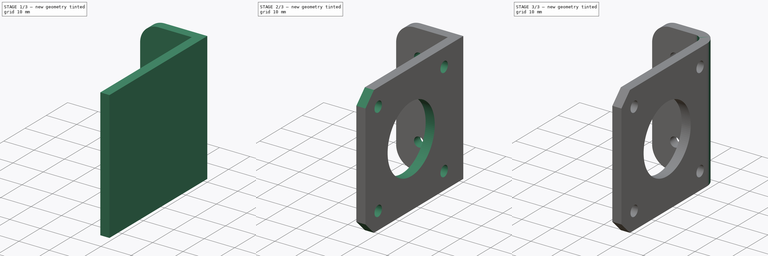
[diagram: build sequence overview — one tinted view per stage of 3, left to right]
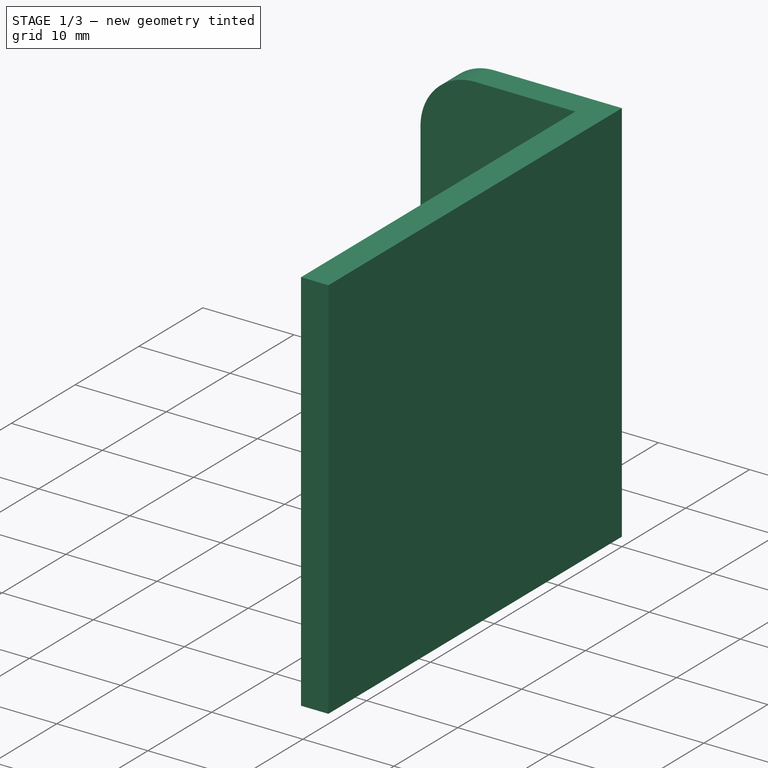
[diagram: stage 1 of 3 — iso view after this stage's code; geometry added in this stage tinted green]
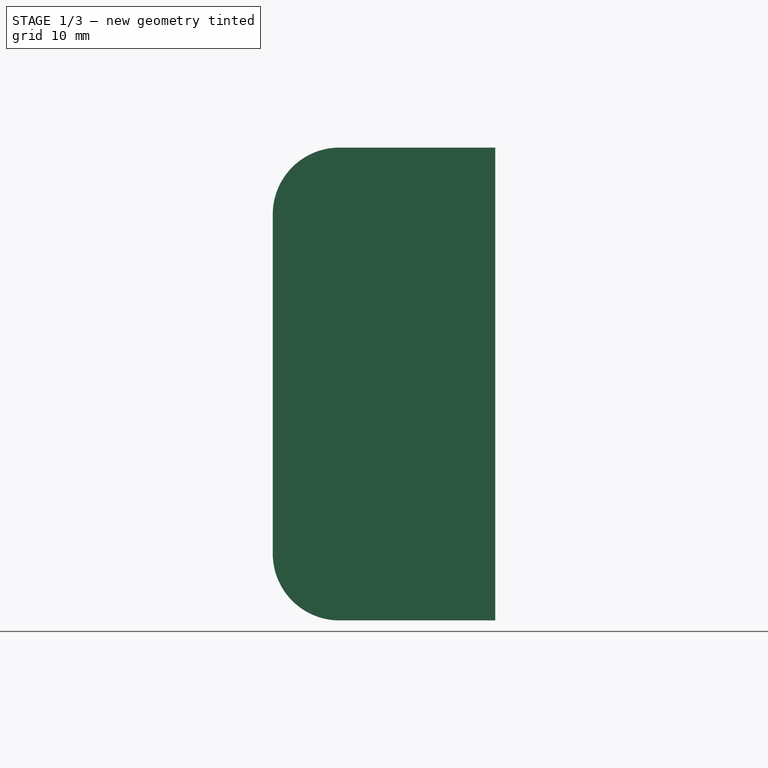
[diagram: stage 1 of 3 — front view after this stage's code; geometry added in this stage tinted green]
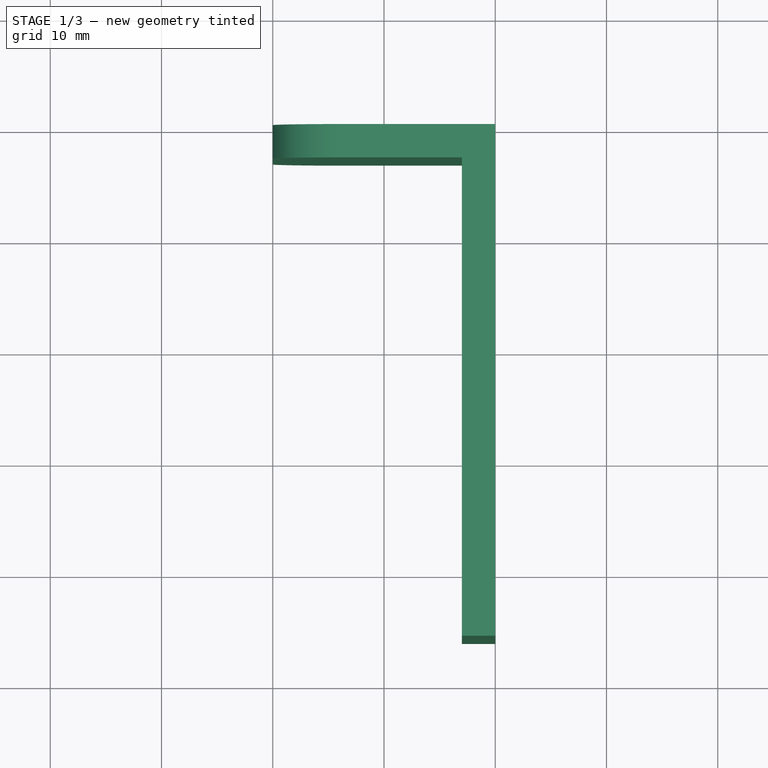
[diagram: stage 1 of 3 — top view after this stage's code; geometry added in this stage tinted green]
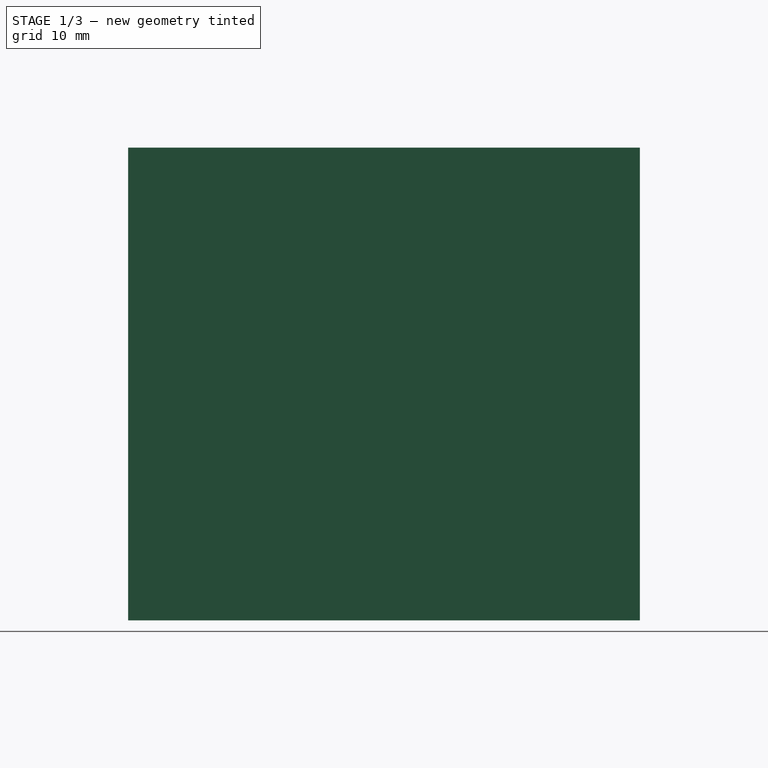
[diagram: stage 1 of 3 — right view after this stage's code; geometry added in this stage tinted green]
FCSTD DOCUMENT  (FreeCAD 0.14R3310 (Git))
Label: 64. SOPORTE MOTOR Y
License: CC-BY 3.0
LicenseURL: http://creativecommons.org/licenses/by/3.0/
objects: Sketcher::SketchObject×3, PartDesign::Fillet×3, PartDesign::Pocket×2, PartDesign::Pad×1, PartDesign::Chamfer×1
note: 13 computed .brp shape members not serialized (recipe doc carries the construction recipe); baked Part::Feature solids carry a one-line shape summary decoded from their .brp

FEATURE [Sketcher::SketchObject] Sketch
  sketch-geometry (6):
    g0: LineSegment StartX=-20 StartY=0 StartZ=0 EndX=0 EndY=0 EndZ=0
    g1: LineSegment StartX=0 StartY=0 StartZ=0 EndX=0 EndY=-46 EndZ=0
    g2: LineSegment StartX=0 StartY=-46 StartZ=0 EndX=-3 EndY=-46 EndZ=0
    g3: LineSegment StartX=-3 StartY=-46 StartZ=0 EndX=-3 EndY=-3 EndZ=0
    g4: LineSegment StartX=-20 StartY=0 StartZ=0 EndX=-20 EndY=-3 EndZ=0
    g5: LineSegment StartX=-20 StartY=-3 StartZ=0 EndX=-3 EndY=-3 EndZ=0
  constraints (17):
    c: Horizontal(g0)
    c: Coincident(g0,g1)
    c: Vertical(g1)
    c: Coincident(g1,g2)
    c: Horizontal(g2)
    c: Coincident(g2,g3)
    c: Vertical(g3)
    c: Coincident(g-1,g0)
    c: Distance(g2) = 3
    c: Coincident(g4,g0)
    c: Vertical(g4)
    c: Coincident(g5,g4)
    c: Coincident(g5,g3)
    c: Horizontal(g5)
    c: Distance(g4) = 3
    c: Distance(g1) = 46
    c: Distance(g0) = 20
FEATURE [PartDesign::Pad] Pad
  Length = 42.5
  Length2 = 100
  Sketch = -> Sketch
  Type = 0
FEATURE [PartDesign::Fillet] Fillet
  Base = -> Pad [Edge17,Edge18]
  Radius = 6
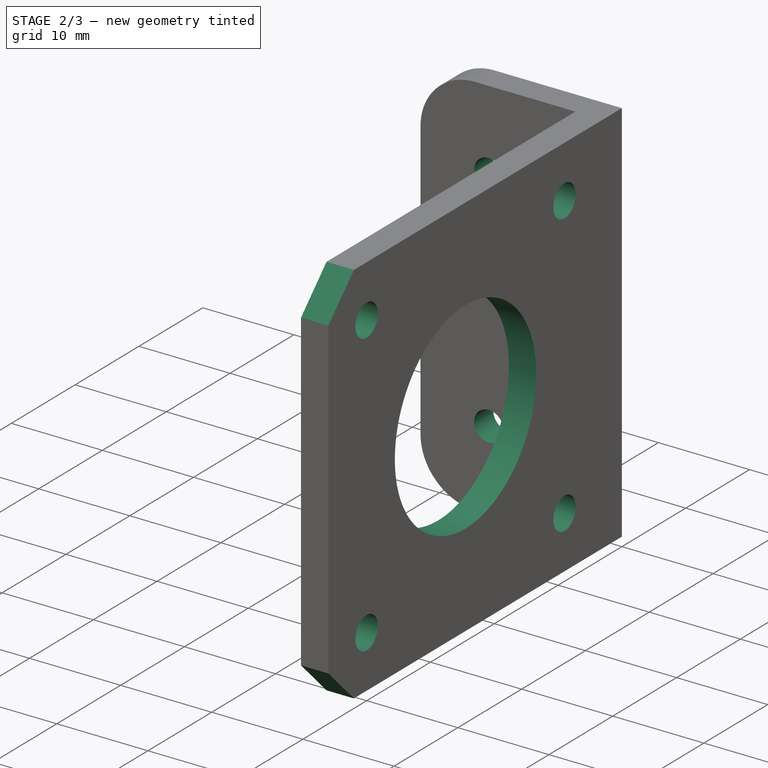
[diagram: stage 2 of 3 — iso view after this stage's code; geometry added in this stage tinted green]
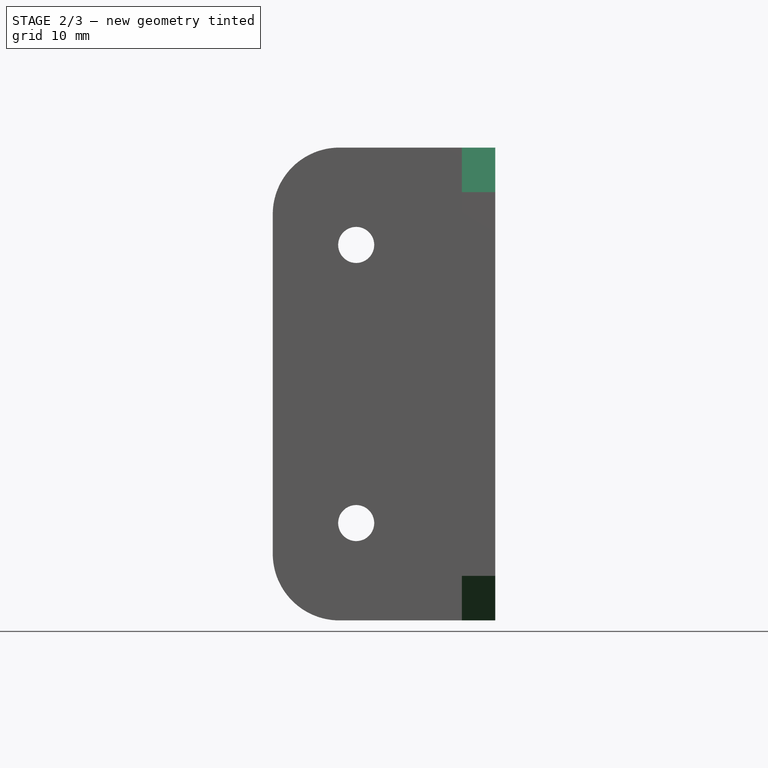
[diagram: stage 2 of 3 — front view after this stage's code; geometry added in this stage tinted green]
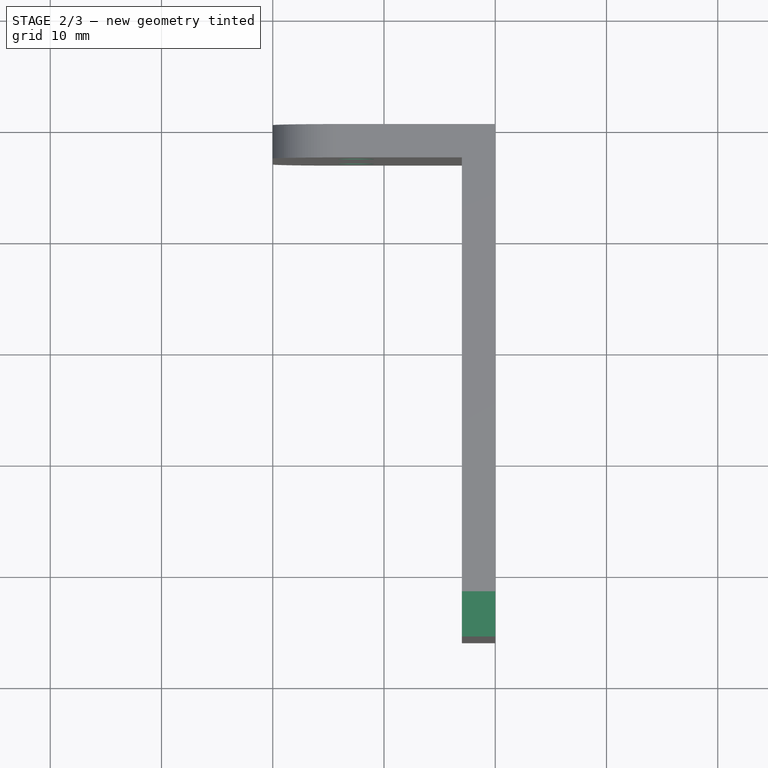
[diagram: stage 2 of 3 — top view after this stage's code; geometry added in this stage tinted green]
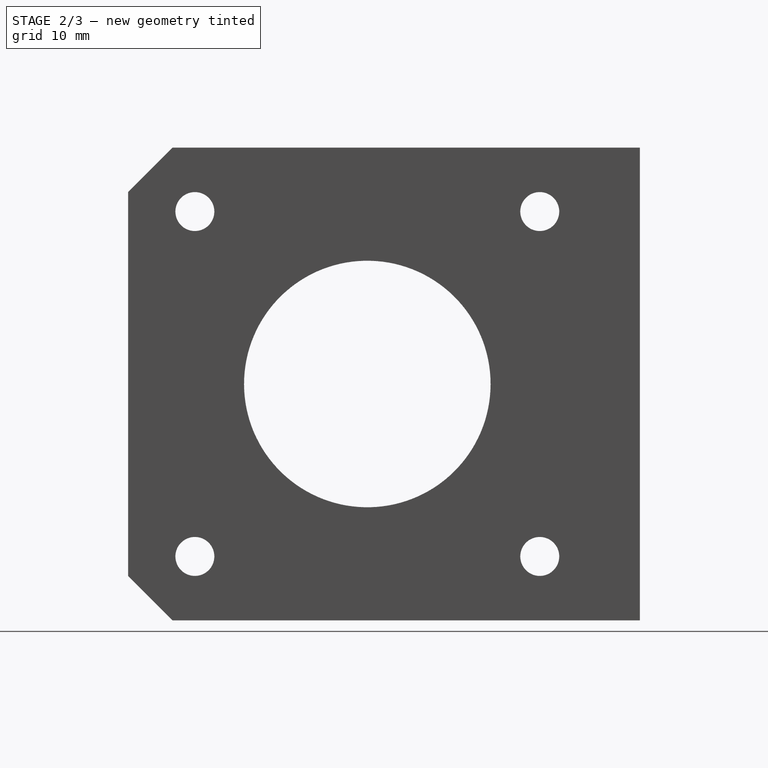
[diagram: stage 2 of 3 — right view after this stage's code; geometry added in this stage tinted green]
FEATURE [Sketcher::SketchObject] Sketch001
  ExternalGeometry = -> [Fillet]
  Placement = pos=(0,-3,0) rot=(1,0,0;1.5708rad)
  Support = -> Fillet [Face8]
  sketch-geometry (2):
    g0: Circle CenterX=-12.5 CenterY=33.75 CenterZ=0 NormalX=0 NormalY=0 NormalZ=1 Radius=1.62
    g1: Circle CenterX=-12.5 CenterY=8.75 CenterZ=0 NormalX=0 NormalY=0 NormalZ=1 Radius=1.62
  constraints (6):
    c: Distance(g0,g-3) = 7.5
    c: Distance(g1,g-3) = 7.5
    c: Equal(g0,g1)
    c: Distance(g0,g1) = 25
    c: Radius(g0) = 1.62
    c: DistanceY(g-1,g1) = 8.75
FEATURE [PartDesign::Pocket] Pocket
  Length = 5
  Sketch = -> Sketch001
  Type = 0
FEATURE [PartDesign::Chamfer] Chamfer
  Base = -> Pocket [Edge18,Edge22]
  Size = 4
FEATURE [Sketcher::SketchObject] Sketch002
  ExternalGeometry = -> [Chamfer]
  Placement = pos=(-3,0,0) rot=(0.57735,-0.57735,-0.57735;2.0944rad)
  Support = -> Chamfer [Face5]
  sketch-geometry (9):
    g0: Circle CenterX=24.5 CenterY=21.25 CenterZ=0 NormalX=0 NormalY=0 NormalZ=1 Radius=11.08
    g1: Circle CenterX=9 CenterY=36.75 CenterZ=0 NormalX=0 NormalY=0 NormalZ=1 Radius=1.75
    g2: Circle CenterX=40 CenterY=36.75 CenterZ=0 NormalX=0 NormalY=0 NormalZ=1 Radius=1.75
    g3: Circle CenterX=9 CenterY=5.75 CenterZ=0 NormalX=0 NormalY=0 NormalZ=1 Radius=1.75
    g4: Circle CenterX=40 CenterY=5.75 CenterZ=0 NormalX=0 NormalY=0 NormalZ=1 Radius=1.75
    g5: LineSegment [constr] StartX=9 StartY=36.75 StartZ=0 EndX=40 EndY=36.75 EndZ=0
    g6: LineSegment [constr] StartX=40 StartY=36.75 StartZ=0 EndX=40 EndY=5.75 EndZ=0
    g7: LineSegment [constr] StartX=40 StartY=5.75 StartZ=0 EndX=9 EndY=5.75 EndZ=0
    g8: LineSegment [constr] StartX=9 StartY=5.75 StartZ=0 EndX=9 EndY=36.75 EndZ=0
  constraints (23):
    c: Equal(g3,g1)
    c: Equal(g1,g2)
    c: Equal(g2,g4)
    c: Radius(g3) = 1.75
    c: Coincident(g5,g6)
    c: Coincident(g6,g7)
    c: Coincident(g7,g8)
    c: Coincident(g8,g5)
    c: Horizontal(g5)
    c: Horizontal(g7)
    c: Vertical(g6)
    c: Vertical(g8)
    c: Coincident(g5,g1)
    c: Coincident(g6,g4)
    c: Coincident(g2,g5)
    c: Coincident(g3,g7)
    c: Distance(g1,g-3) = 5.75
    c: Distance(g2,g-4) = 6
    c: Equal(g6,g5)
    c: Distance(g5) = 31
    c: Radius(g0) = 11.08
    c: Distance(g0,g8) = 15.5
    c: Distance(g0,g7) = 15.5
FEATURE [PartDesign::Pocket] Pocket001
  Length = 5
  Sketch = -> Sketch002
  Type = 0
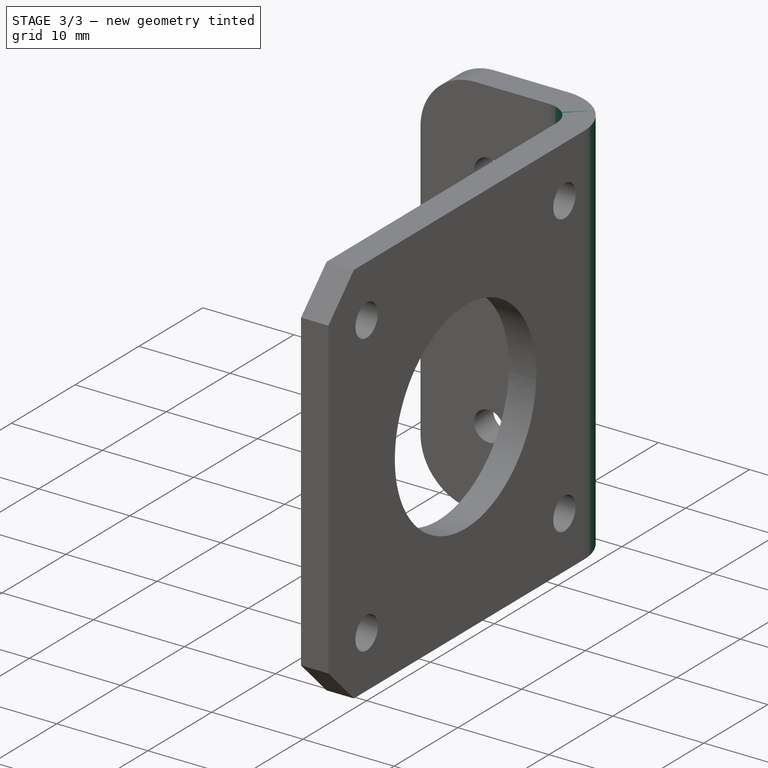
[diagram: stage 3 of 3 — iso view after this stage's code; geometry added in this stage tinted green]
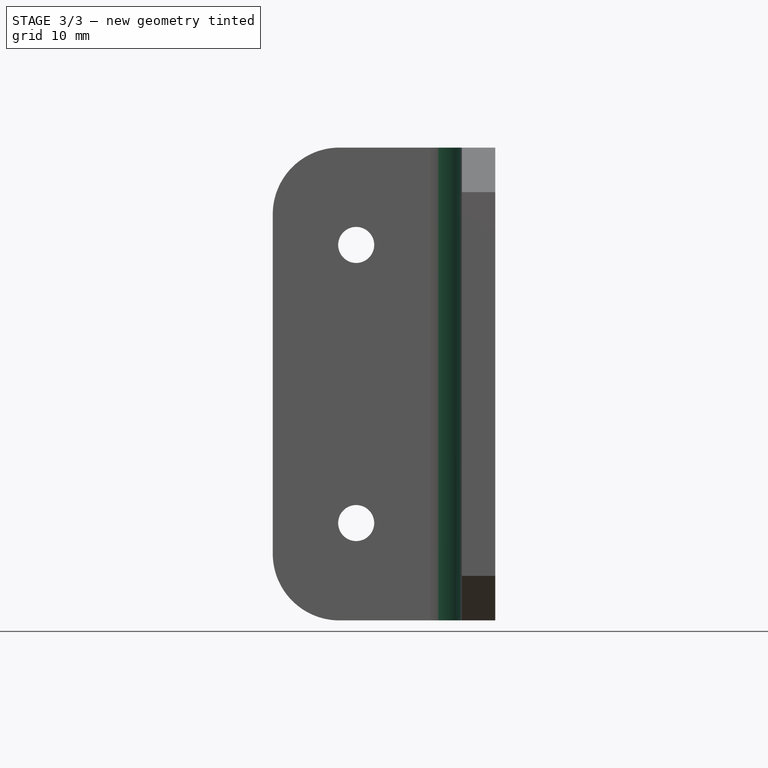
[diagram: stage 3 of 3 — front view after this stage's code; geometry added in this stage tinted green]
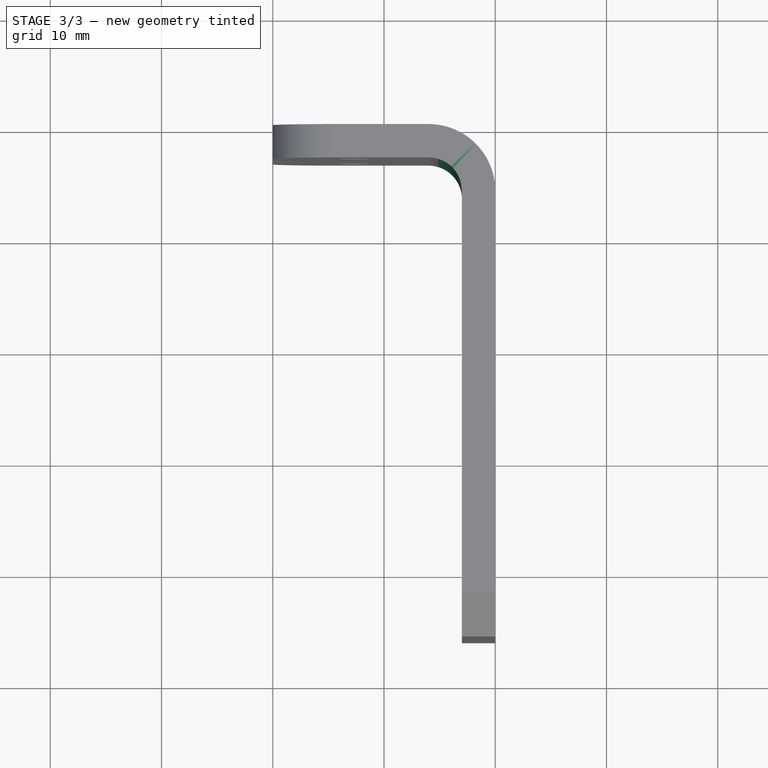
[diagram: stage 3 of 3 — top view after this stage's code; geometry added in this stage tinted green]
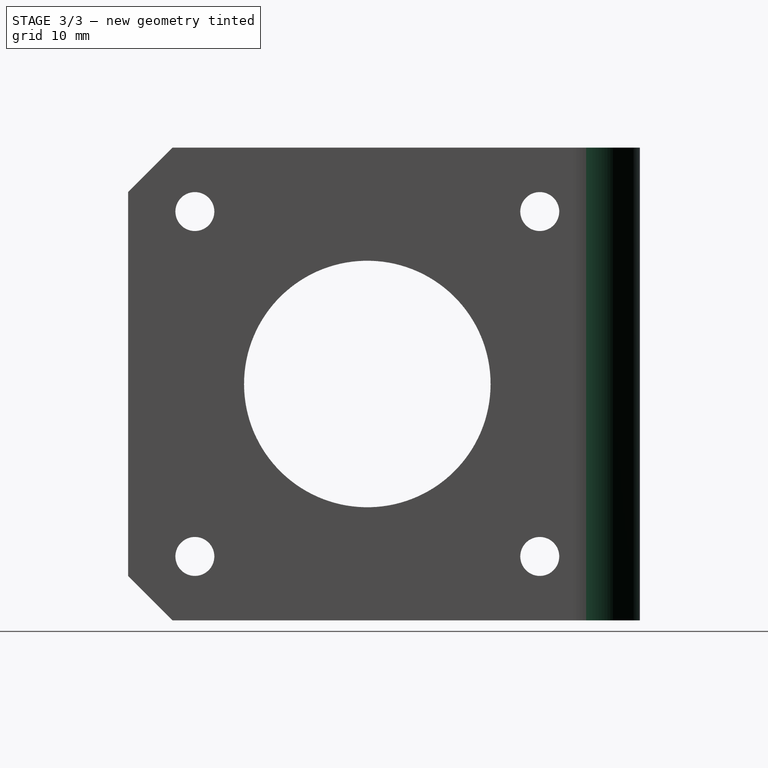
[diagram: stage 3 of 3 — right view after this stage's code; geometry added in this stage tinted green]
FEATURE [PartDesign::Fillet] Fillet001
  Base = -> Pocket001 [Edge28]
  Radius = 3
FEATURE [PartDesign::Fillet] Fillet002
  Base = -> Fillet001 [Edge31]
  Radius = 6
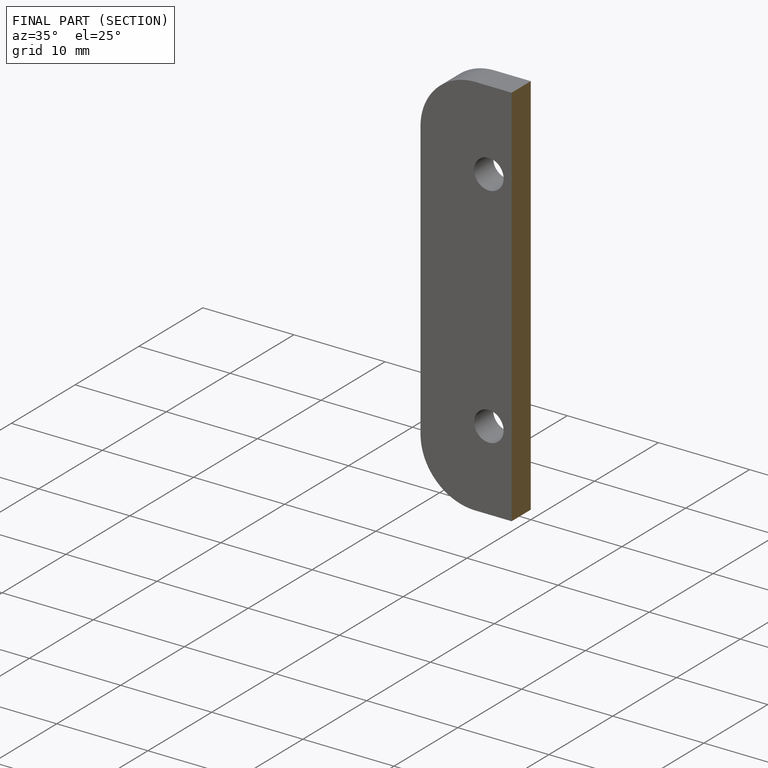
[diagram: finished part — half-section view (interior)]
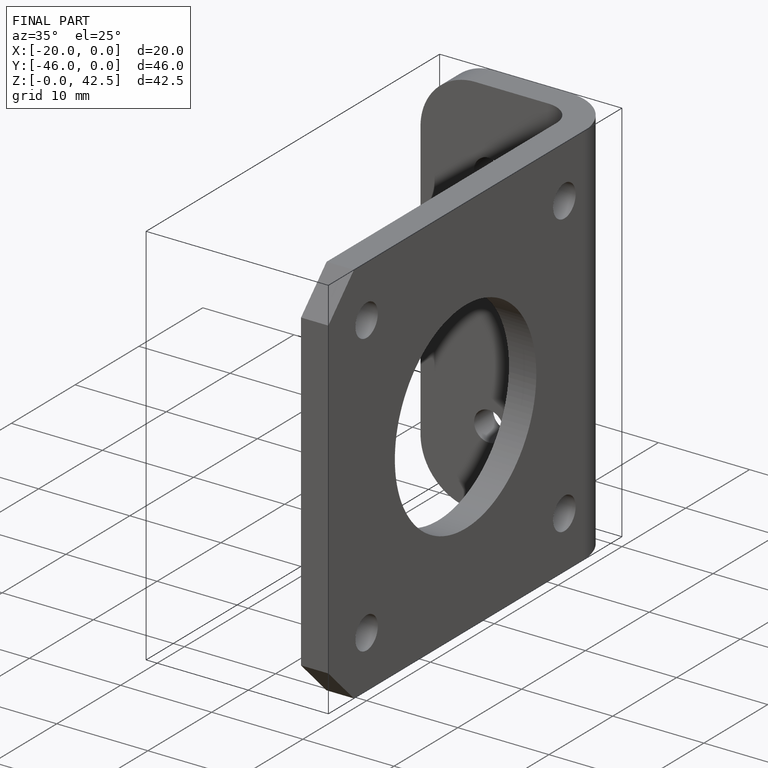
[diagram: finished part — iso view with bounding-box wireframe]
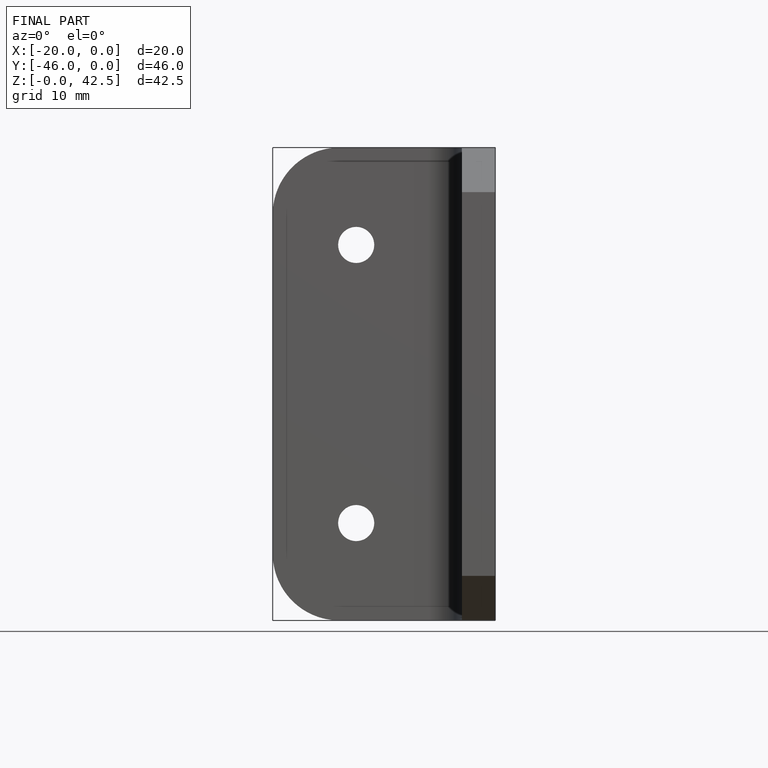
[diagram: finished part — front view with bounding-box wireframe]
